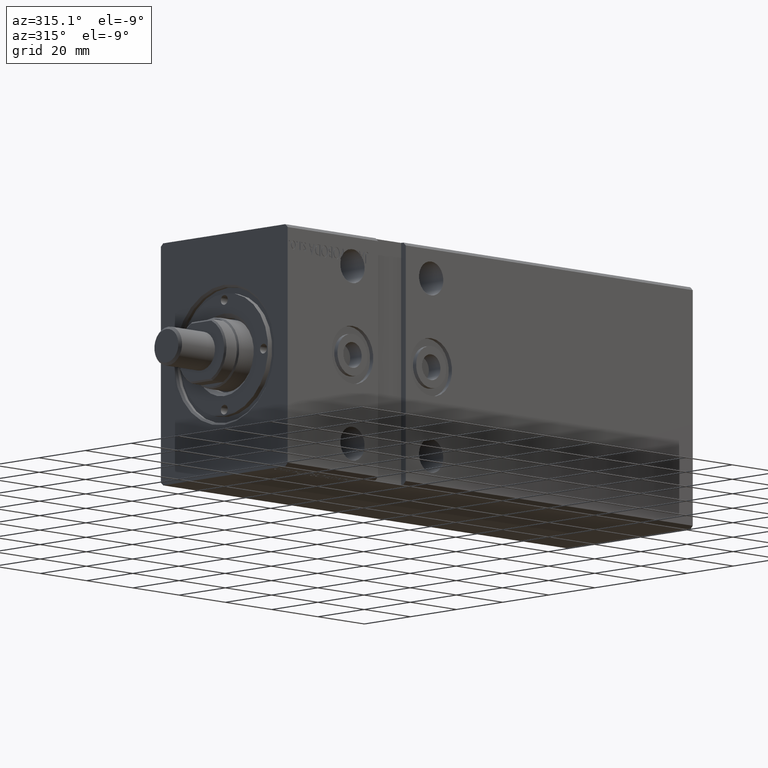
[diagram: clean part render]
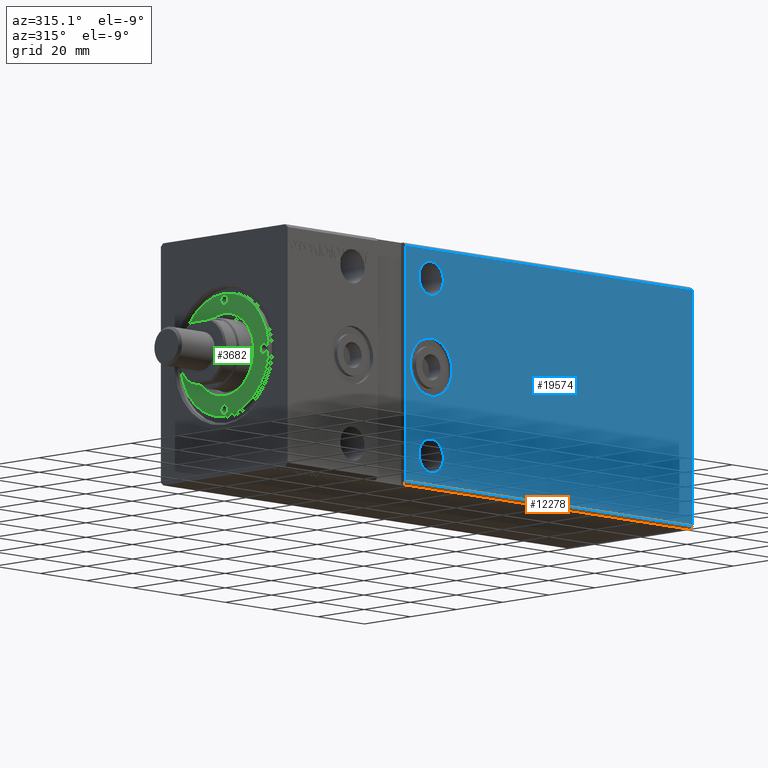
[diagram: same view with three faces highlighted in distinct colors, each labeled with its STEP entity id]
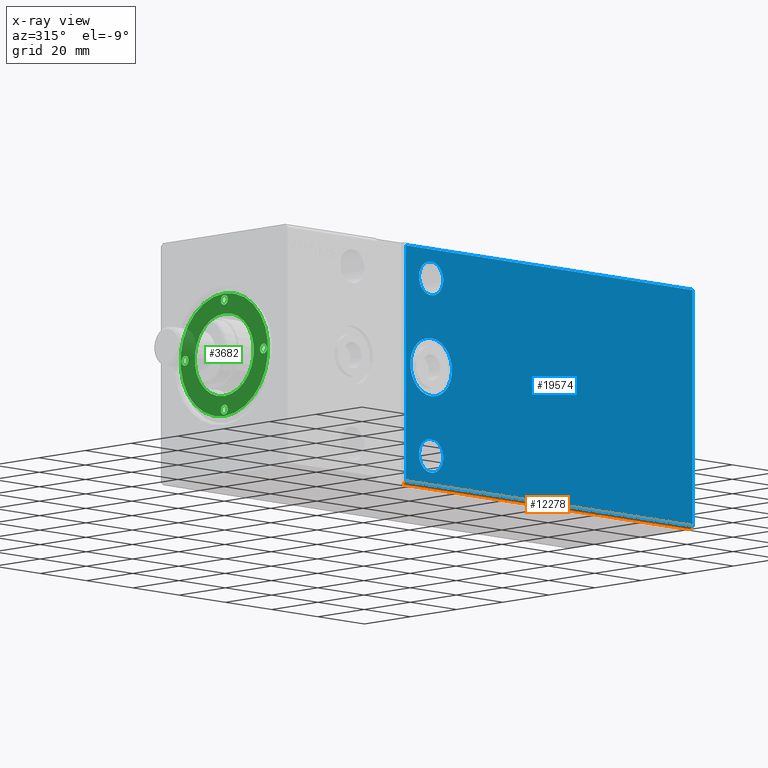
[diagram: x-ray of the same camera — body ghosted, the three highlighted faces saturated]
A machine part, auxiliary view with three faces highlighted in distinct colors.
The next image is the same camera in x-ray (body ghosted, the three faces saturated) — at least one of them is partly hidden behind the body in this view.
Their STEP definitions:

[orange] entity #12278 — the highlighted planar face has unit normal (0, 0.7071, 0.7071).
#193 = CARTESIAN_POINT ( 'NONE',  ( 175.0000000000000000, -27.50000000000000355, -36.49999999999998579 ) ) ;
#1748 = EDGE_CURVE ( 'NONE', #25143, #5171, #18840, .T. ) ;
#3412 = PLANE ( 'NONE',  #38011 ) ;
#4256 = ORIENTED_EDGE ( 'NONE', *, *, #41076, .F. ) ;
#4576 = DIRECTION ( 'NONE',  ( -1.000000000000000000, -0.000000000000000000, -0.000000000000000000 ) ) ;
#4600 = DIRECTION ( 'NONE',  ( -1.000000000000000000, -0.000000000000000000, -0.000000000000000000 ) ) ;
#4772 = CARTESIAN_POINT ( 'NONE',  ( 175.0000000000000000, -26.50000000000000355, -37.49999999999999289 ) ) ;
#5171 = VERTEX_POINT ( 'NONE', #25664 ) ;
#6458 = FACE_OUTER_BOUND ( 'NONE', #40925, .T. ) ;
#7221 = DIRECTION ( 'NONE',  ( 0.000000000000000000, 0.7071067811865451302, -0.7071067811865500152 ) ) ;
#7617 = LINE ( 'NONE', #27037, #27666 ) ;
#8691 = VECTOR ( 'NONE', #38675, 1000.000000000000114 ) ;
#10263 = CARTESIAN_POINT ( 'NONE',  ( 175.0000000000000000, -27.50000000000000355, -36.49999999999998579 ) ) ;
#12278 = ADVANCED_FACE ( 'NONE', ( #6458 ), #3412, .F. ) ;
#12998 = EDGE_CURVE ( 'NONE', #26466, #5171, #7617, .T. ) ;
#13920 = ORIENTED_EDGE ( 'NONE', *, *, #12998, .F. ) ;
#16366 = VECTOR ( 'NONE', #4576, 1000.000000000000000 ) ;
#18490 = CARTESIAN_POINT ( 'NONE',  ( 51.00000000000003553, -27.50000000000000000, -36.49999999999997868 ) ) ;
#18840 = LINE ( 'NONE', #25325, #8691 ) ;
#19459 = ORIENTED_EDGE ( 'NONE', *, *, #1748, .T. ) ;
#25143 = VERTEX_POINT ( 'NONE', #18490 ) ;
#25325 = CARTESIAN_POINT ( 'NONE',  ( 51.00000000000002842, -27.49999999999996803, -36.50000000000002132 ) ) ;
#25664 = CARTESIAN_POINT ( 'NONE',  ( 51.00000000000003553, -26.50000000000000355, -37.49999999999999289 ) ) ;
#26466 = VERTEX_POINT ( 'NONE', #4772 ) ;
#27037 = CARTESIAN_POINT ( 'NONE',  ( 175.0000000000000000, -26.50000000000000355, -37.49999999999999289 ) ) ;
#27666 = VECTOR ( 'NONE', #4600, 1000.000000000000000 ) ;
#29403 = CARTESIAN_POINT ( 'NONE',  ( 175.0000000000000000, -27.50000000000000355, -36.49999999999998579 ) ) ;
#29739 = DIRECTION ( 'NONE',  ( 0.000000000000000000, -0.7071067811865451302, 0.7071067811865499042 ) ) ;
#30090 = LINE ( 'NONE', #10263, #33132 ) ;
#32546 = VERTEX_POINT ( 'NONE', #29403 ) ;
#33132 = VECTOR ( 'NONE', #7221, 1000.000000000000114 ) ;
#33901 = LINE ( 'NONE', #34553, #16366 ) ;
#34553 = CARTESIAN_POINT ( 'NONE',  ( 175.0000000000000000, -27.50000000000000355, -36.49999999999998579 ) ) ;
#36844 = EDGE_CURVE ( 'NONE', #32546, #25143, #33901, .T. ) ;
#37619 = ORIENTED_EDGE ( 'NONE', *, *, #36844, .T. ) ;
#38011 = AXIS2_PLACEMENT_3D ( 'NONE', #193, #39220, #29739 ) ;
#38675 = DIRECTION ( 'NONE',  ( 3.925231146709450119E-16, 0.7071067811865451302, -0.7071067811865499042 ) ) ;
#39220 = DIRECTION ( 'NONE',  ( -0.000000000000000000, 0.7071067811865499042, 0.7071067811865451302 ) ) ;
#40925 = EDGE_LOOP ( 'NONE', ( #37619, #19459, #13920, #4256 ) ) ;
#41076 = EDGE_CURVE ( 'NONE', #32546, #26466, #30090, .T. ) ;

[blue] entity #19574 — the highlighted planar face has unit normal (0, 1, 0).
#115 = CARTESIAN_POINT ( 'NONE',  ( 62.00000000000000000, -27.50000000000000355, -4.082078227610671055E-15 ) ) ;
#201 = EDGE_CURVE ( 'NONE', #9656, #37541, #14155, .T. ) ;
#735 = CIRCLE ( 'NONE', #3475, 5.250000000000004441 ) ;
#1067 = ORIENTED_EDGE ( 'NONE', *, *, #22986, .F. ) ;
#2353 = AXIS2_PLACEMENT_3D ( 'NONE', #115, #30500, #6792 ) ;
#2615 = CARTESIAN_POINT ( 'NONE',  ( 175.0000000000000000, -27.50000000000000711, 36.50000000000000711 ) ) ;
#3475 = AXIS2_PLACEMENT_3D ( 'NONE', #37703, #18271, #14823 ) ;
#4576 = DIRECTION ( 'NONE',  ( -1.000000000000000000, -0.000000000000000000, -0.000000000000000000 ) ) ;
#4888 = LINE ( 'NONE', #11999, #23862 ) ;
#6792 = DIRECTION ( 'NONE',  ( 0.000000000000000000, 0.000000000000000000, 1.000000000000000000 ) ) ;
#6845 = LINE ( 'NONE', #26274, #39501 ) ;
#7656 = ORIENTED_EDGE ( 'NONE', *, *, #31650, .T. ) ;
#7995 = CARTESIAN_POINT ( 'NONE',  ( 51.00000000000000000, -27.50000000000000711, 36.50000000000000711 ) ) ;
#8055 = CARTESIAN_POINT ( 'NONE',  ( 62.00000000000000000, -27.50000000000000355, -9.000000000000000000 ) ) ;
#8160 = ORIENTED_EDGE ( 'NONE', *, *, #9704, .F. ) ;
#8245 = EDGE_CURVE ( 'NONE', #9402, #13244, #22473, .T. ) ;
#8786 = CARTESIAN_POINT ( 'NONE',  ( 62.00000000000000000, -27.50000000000000355, 22.24999999999999289 ) ) ;
#9172 = VERTEX_POINT ( 'NONE', #22689 ) ;
#9402 = VERTEX_POINT ( 'NONE', #28037 ) ;
#9656 = VERTEX_POINT ( 'NONE', #8786 ) ;
#9704 = EDGE_CURVE ( 'NONE', #37541, #9656, #735, .T. ) ;
#10691 = EDGE_CURVE ( 'NONE', #31321, #9172, #26221, .T. ) ;
#10698 = CARTESIAN_POINT ( 'NONE',  ( 62.00000000000000711, -27.50000000000000355, -32.75000000000000000 ) ) ;
#11999 = CARTESIAN_POINT ( 'NONE',  ( 175.0000000000000000, -27.50000000000000711, 36.50000000000000711 ) ) ;
#12744 = DIRECTION ( 'NONE',  ( -1.000000000000000000, -0.000000000000000000, -0.000000000000000000 ) ) ;
#13244 = VERTEX_POINT ( 'NONE', #7995 ) ;
#13762 = VERTEX_POINT ( 'NONE', #36389 ) ;
#14155 = CIRCLE ( 'NONE', #15551, 5.250000000000004441 ) ;
#14167 = DIRECTION ( 'NONE',  ( -0.000000000000000000, 1.000000000000000000, 4.752667057470704875E-17 ) ) ;
#14240 = AXIS2_PLACEMENT_3D ( 'NONE', #33092, #23194, #29445 ) ;
#14823 = DIRECTION ( 'NONE',  ( 0.000000000000000000, 0.000000000000000000, 1.000000000000000000 ) ) ;
#15489 = ORIENTED_EDGE ( 'NONE', *, *, #33290, .F. ) ;
#15551 = AXIS2_PLACEMENT_3D ( 'NONE', #28174, #31412, #41308 ) ;
#15747 = EDGE_LOOP ( 'NONE', ( #37354, #7656 ) ) ;
#16366 = VECTOR ( 'NONE', #4576, 1000.000000000000000 ) ;
#16531 = ORIENTED_EDGE ( 'NONE', *, *, #10691, .T. ) ;
#17229 = AXIS2_PLACEMENT_3D ( 'NONE', #37434, #20198, #39803 ) ;
#17396 = PLANE ( 'NONE',  #29812 ) ;
#17493 = VERTEX_POINT ( 'NONE', #8055 ) ;
#18271 = DIRECTION ( 'NONE',  ( 0.000000000000000000, -1.000000000000000000, -4.752667057470704875E-17 ) ) ;
#18490 = CARTESIAN_POINT ( 'NONE',  ( 51.00000000000003553, -27.50000000000000000, -36.49999999999997868 ) ) ;
#19513 = ORIENTED_EDGE ( 'NONE', *, *, #36844, .F. ) ;
#19574 = ADVANCED_FACE ( 'NONE', ( #24541, #20865, #37469, #20647 ), #17396, .F. ) ;
#20198 = DIRECTION ( 'NONE',  ( -0.000000000000000000, 1.000000000000000000, 4.752667057470704875E-17 ) ) ;
#20327 = EDGE_LOOP ( 'NONE', ( #39909, #1067, #19513, #15489 ) ) ;
#20647 = FACE_BOUND ( 'NONE', #34332, .T. ) ;
#20865 = FACE_BOUND ( 'NONE', #24906, .T. ) ;
#21893 = CARTESIAN_POINT ( 'NONE',  ( 62.00000000000000711, -27.50000000000000355, -27.50000000000000355 ) ) ;
#22473 = LINE ( 'NONE', #2615, #33710 ) ;
#22589 = CARTESIAN_POINT ( 'NONE',  ( 62.00000000000000000, -27.50000000000000355, 32.75000000000000000 ) ) ;
#22689 = CARTESIAN_POINT ( 'NONE',  ( 62.00000000000000711, -27.50000000000000355, -22.25000000000000711 ) ) ;
#22986 = EDGE_CURVE ( 'NONE', #25143, #13244, #6845, .T. ) ;
#23179 = CIRCLE ( 'NONE', #34172, 5.249999999999997335 ) ;
#23194 = DIRECTION ( 'NONE',  ( -0.000000000000000000, 1.000000000000000000, 5.507058653894625853E-17 ) ) ;
#23379 = EDGE_CURVE ( 'NONE', #17493, #13762, #29904, .T. ) ;
#23862 = VECTOR ( 'NONE', #39305, 1000.000000000000000 ) ;
#24541 = FACE_BOUND ( 'NONE', #15747, .T. ) ;
#24906 = EDGE_LOOP ( 'NONE', ( #16531, #25054 ) ) ;
#25054 = ORIENTED_EDGE ( 'NONE', *, *, #33855, .T. ) ;
#25143 = VERTEX_POINT ( 'NONE', #18490 ) ;
#26221 = CIRCLE ( 'NONE', #17229, 5.249999999999997335 ) ;
#26274 = CARTESIAN_POINT ( 'NONE',  ( 51.00000000000000000, -27.50000000000000711, 37.50000000000000711 ) ) ;
#27337 = DIRECTION ( 'NONE',  ( 0.000000000000000000, -4.752667057470704875E-17, 1.000000000000000000 ) ) ;
#27705 = DIRECTION ( 'NONE',  ( -0.000000000000000000, 1.000000000000000000, 4.752667057470704875E-17 ) ) ;
#28037 = CARTESIAN_POINT ( 'NONE',  ( 175.0000000000000000, -27.50000000000000711, 36.50000000000000711 ) ) ;
#28174 = CARTESIAN_POINT ( 'NONE',  ( 62.00000000000000000, -27.50000000000000355, 27.49999999999999645 ) ) ;
#29403 = CARTESIAN_POINT ( 'NONE',  ( 175.0000000000000000, -27.50000000000000355, -36.49999999999998579 ) ) ;
#29445 = DIRECTION ( 'NONE',  ( 0.000000000000000000, 0.000000000000000000, 1.000000000000000000 ) ) ;
#29812 = AXIS2_PLACEMENT_3D ( 'NONE', #30787, #14167, #27337 ) ;
#29904 = CIRCLE ( 'NONE', #2353, 8.999999999999996447 ) ;
#30500 = DIRECTION ( 'NONE',  ( -0.000000000000000000, 1.000000000000000000, 5.507058653894625853E-17 ) ) ;
#30787 = CARTESIAN_POINT ( 'NONE',  ( 175.0000000000000000, -27.50000000000000711, 36.50000000000000711 ) ) ;
#31321 = VERTEX_POINT ( 'NONE', #10698 ) ;
#31412 = DIRECTION ( 'NONE',  ( 0.000000000000000000, -1.000000000000000000, -4.752667057470704875E-17 ) ) ;
#31650 = EDGE_CURVE ( 'NONE', #13762, #17493, #38375, .T. ) ;
#32546 = VERTEX_POINT ( 'NONE', #29403 ) ;
#32741 = DIRECTION ( 'NONE',  ( -5.551115123125782702E-16, -9.251858538542971581E-17, 1.000000000000000000 ) ) ;
#33092 = CARTESIAN_POINT ( 'NONE',  ( 62.00000000000000000, -27.50000000000000355, -4.082078227610671055E-15 ) ) ;
#33290 = EDGE_CURVE ( 'NONE', #9402, #32546, #4888, .T. ) ;
#33710 = VECTOR ( 'NONE', #12744, 1000.000000000000000 ) ;
#33855 = EDGE_CURVE ( 'NONE', #9172, #31321, #23179, .T. ) ;
#33901 = LINE ( 'NONE', #34553, #16366 ) ;
#34172 = AXIS2_PLACEMENT_3D ( 'NONE', #21893, #27705, #41057 ) ;
#34332 = EDGE_LOOP ( 'NONE', ( #42636, #8160 ) ) ;
#34553 = CARTESIAN_POINT ( 'NONE',  ( 175.0000000000000000, -27.50000000000000355, -36.49999999999998579 ) ) ;
#36389 = CARTESIAN_POINT ( 'NONE',  ( 62.00000000000000000, -27.50000000000000355, 8.999999999999992895 ) ) ;
#36844 = EDGE_CURVE ( 'NONE', #32546, #25143, #33901, .T. ) ;
#37354 = ORIENTED_EDGE ( 'NONE', *, *, #23379, .T. ) ;
#37434 = CARTESIAN_POINT ( 'NONE',  ( 62.00000000000000711, -27.50000000000000355, -27.50000000000000355 ) ) ;
#37469 = FACE_OUTER_BOUND ( 'NONE', #20327, .T. ) ;
#37541 = VERTEX_POINT ( 'NONE', #22589 ) ;
#37703 = CARTESIAN_POINT ( 'NONE',  ( 62.00000000000000000, -27.50000000000000355, 27.49999999999999645 ) ) ;
#38375 = CIRCLE ( 'NONE', #14240, 8.999999999999996447 ) ;
#39305 = DIRECTION ( 'NONE',  ( 0.000000000000000000, 4.752667057470705491E-17, -1.000000000000000000 ) ) ;
#39501 = VECTOR ( 'NONE', #32741, 1000.000000000000000 ) ;
#39803 = DIRECTION ( 'NONE',  ( 0.000000000000000000, 0.000000000000000000, 1.000000000000000000 ) ) ;
#39909 = ORIENTED_EDGE ( 'NONE', *, *, #8245, .T. ) ;
#41057 = DIRECTION ( 'NONE',  ( 0.000000000000000000, 0.000000000000000000, 1.000000000000000000 ) ) ;
#41308 = DIRECTION ( 'NONE',  ( 0.000000000000000000, 0.000000000000000000, 1.000000000000000000 ) ) ;
#42636 = ORIENTED_EDGE ( 'NONE', *, *, #201, .F. ) ;

[green] entity #3682 — the highlighted planar face has unit normal (-1, 0, 0).
#478 = DIRECTION ( 'NONE',  ( 1.000000000000000000, 0.000000000000000000, 0.000000000000000000 ) ) ;
#492 = DIRECTION ( 'NONE',  ( -0.000000000000000000, -0.000000000000000000, 1.000000000000000000 ) ) ;
#592 = VERTEX_POINT ( 'NONE', #36919 ) ;
#1073 = CIRCLE ( 'NONE', #7947, 1.499999999999996891 ) ;
#1223 = VERTEX_POINT ( 'NONE', #20718 ) ;
#1301 = DIRECTION ( 'NONE',  ( 0.000000000000000000, 0.000000000000000000, 1.000000000000000000 ) ) ;
#1517 = CIRCLE ( 'NONE', #26973, 1.499999999999996891 ) ;
#1765 = VERTEX_POINT ( 'NONE', #32004 ) ;
#2127 = CIRCLE ( 'NONE', #38610, 12.79999999999997407 ) ;
#2246 = CARTESIAN_POINT ( 'NONE',  ( 0.000000000000000000, -17.00000000000000000, 9.999999999999998224 ) ) ;
#2714 = EDGE_CURVE ( 'NONE', #20202, #1223, #23120, .T. ) ;
#2842 = EDGE_LOOP ( 'NONE', ( #37346, #21373 ) ) ;
#3177 = ORIENTED_EDGE ( 'NONE', *, *, #24350, .F. ) ;
#3487 = CARTESIAN_POINT ( 'NONE',  ( -17.00000000000000000, 0.000000000000000000, 9.999999999999998224 ) ) ;
#3682 = ADVANCED_FACE ( 'NONE', ( #33211, #36444, #26535, #32797, #39249, #23303 ), #29972, .T. ) ;
#3775 = AXIS2_PLACEMENT_3D ( 'NONE', #21298, #18043, #31217 ) ;
#3870 = CARTESIAN_POINT ( 'NONE',  ( 0.000000000000000000, 0.000000000000000000, 9.999999999999998224 ) ) ;
#4809 = CIRCLE ( 'NONE', #10327, 19.00000000000000000 ) ;
#5087 = CIRCLE ( 'NONE', #16770, 1.499999999999997780 ) ;
#5106 = EDGE_LOOP ( 'NONE', ( #6606, #40346 ) ) ;
#5677 = CIRCLE ( 'NONE', #34615, 1.499999999999996891 ) ;
#5686 = ORIENTED_EDGE ( 'NONE', *, *, #2714, .F. ) ;
#6606 = ORIENTED_EDGE ( 'NONE', *, *, #40143, .F. ) ;
#6893 = CARTESIAN_POINT ( 'NONE',  ( 0.000000000000000000, 0.000000000000000000, 9.999999999999998224 ) ) ;
#7103 = VERTEX_POINT ( 'NONE', #37985 ) ;
#7722 = EDGE_CURVE ( 'NONE', #10226, #33400, #4809, .T. ) ;
#7879 = CARTESIAN_POINT ( 'NONE',  ( -15.50000000000000355, 0.000000000000000000, 9.999999999999998224 ) ) ;
#7947 = AXIS2_PLACEMENT_3D ( 'NONE', #27655, #492, #30886 ) ;
#8616 = CARTESIAN_POINT ( 'NONE',  ( -18.50000000000000000, 1.836970198721026236E-16, 9.999999999999998224 ) ) ;
#9697 = CIRCLE ( 'NONE', #10384, 19.00000000000000000 ) ;
#10226 = VERTEX_POINT ( 'NONE', #30256 ) ;
#10327 = AXIS2_PLACEMENT_3D ( 'NONE', #38468, #35666, #28768 ) ;
#10384 = AXIS2_PLACEMENT_3D ( 'NONE', #23965, #1301, #41773 ) ;
#10471 = EDGE_CURVE ( 'NONE', #33400, #10226, #9697, .T. ) ;
#10484 = ORIENTED_EDGE ( 'NONE', *, *, #39980, .T. ) ;
#11936 = DIRECTION ( 'NONE',  ( 1.000000000000000000, 0.000000000000000000, 0.000000000000000000 ) ) ;
#12641 = DIRECTION ( 'NONE',  ( -0.000000000000000000, -0.000000000000000000, -1.000000000000000000 ) ) ;
#12924 = ORIENTED_EDGE ( 'NONE', *, *, #27310, .F. ) ;
#13375 = DIRECTION ( 'NONE',  ( 0.000000000000000000, 0.000000000000000000, 1.000000000000000000 ) ) ;
#13455 = AXIS2_PLACEMENT_3D ( 'NONE', #6893, #13375, #36658 ) ;
#13988 = CARTESIAN_POINT ( 'NONE',  ( 17.00000000000000000, 0.000000000000000000, 9.999999999999998224 ) ) ;
#14212 = DIRECTION ( 'NONE',  ( 1.000000000000000000, 0.000000000000000000, 0.000000000000000000 ) ) ;
#14323 = CARTESIAN_POINT ( 'NONE',  ( -17.00000000000000000, 0.000000000000000000, 9.999999999999998224 ) ) ;
#14425 = DIRECTION ( 'NONE',  ( -0.000000000000000000, -0.000000000000000000, -1.000000000000000000 ) ) ;
#16770 = AXIS2_PLACEMENT_3D ( 'NONE', #3487, #40129, #478 ) ;
#17340 = DIRECTION ( 'NONE',  ( -0.000000000000000000, -0.000000000000000000, 1.000000000000000000 ) ) ;
#17469 = CIRCLE ( 'NONE', #22348, 1.499999999999996891 ) ;
#17555 = EDGE_CURVE ( 'NONE', #1765, #592, #1517, .T. ) ;
#17773 = DIRECTION ( 'NONE',  ( -0.000000000000000000, -0.000000000000000000, 1.000000000000000000 ) ) ;
#18043 = DIRECTION ( 'NONE',  ( -0.000000000000000000, -0.000000000000000000, 1.000000000000000000 ) ) ;
#18684 = EDGE_CURVE ( 'NONE', #32097, #31940, #5677, .T. ) ;
#19113 = DIRECTION ( 'NONE',  ( 1.000000000000000000, 0.000000000000000000, 0.000000000000000000 ) ) ;
#19343 = CIRCLE ( 'NONE', #24143, 1.499999999999997780 ) ;
#20202 = VERTEX_POINT ( 'NONE', #36104 ) ;
#20718 = CARTESIAN_POINT ( 'NONE',  ( 18.50000000000000000, 0.000000000000000000, 9.999999999999998224 ) ) ;
#20807 = DIRECTION ( 'NONE',  ( 1.000000000000000000, 0.000000000000000000, 0.000000000000000000 ) ) ;
#21120 = EDGE_LOOP ( 'NONE', ( #3177, #33675 ) ) ;
#21298 = CARTESIAN_POINT ( 'NONE',  ( 17.00000000000000000, 0.000000000000000000, 9.999999999999998224 ) ) ;
#21373 = ORIENTED_EDGE ( 'NONE', *, *, #7722, .T. ) ;
#21960 = CARTESIAN_POINT ( 'NONE',  ( 12.79999999999997407, 0.000000000000000000, 9.999999999999998224 ) ) ;
#22307 = EDGE_LOOP ( 'NONE', ( #39242, #5686 ) ) ;
#22348 = AXIS2_PLACEMENT_3D ( 'NONE', #2246, #17773, #35031 ) ;
#22508 = EDGE_CURVE ( 'NONE', #24741, #38608, #5087, .T. ) ;
#23120 = CIRCLE ( 'NONE', #3775, 1.499999999999997780 ) ;
#23303 = FACE_OUTER_BOUND ( 'NONE', #2842, .T. ) ;
#23965 = CARTESIAN_POINT ( 'NONE',  ( 0.000000000000000000, 0.000000000000000000, 9.999999999999998224 ) ) ;
#24143 = AXIS2_PLACEMENT_3D ( 'NONE', #14323, #17340, #20807 ) ;
#24350 = EDGE_CURVE ( 'NONE', #592, #1765, #17469, .T. ) ;
#24741 = VERTEX_POINT ( 'NONE', #8616 ) ;
#25842 = CIRCLE ( 'NONE', #31354, 1.499999999999997780 ) ;
#26104 = CARTESIAN_POINT ( 'NONE',  ( 1.499999999999996891, 17.00000000000000000, 9.999999999999998224 ) ) ;
#26535 = FACE_BOUND ( 'NONE', #22307, .T. ) ;
#26684 = EDGE_CURVE ( 'NONE', #1223, #20202, #25842, .T. ) ;
#26973 = AXIS2_PLACEMENT_3D ( 'NONE', #28325, #41466, #11936 ) ;
#27159 = DIRECTION ( 'NONE',  ( -0.000000000000000000, -0.000000000000000000, 1.000000000000000000 ) ) ;
#27310 = EDGE_CURVE ( 'NONE', #31940, #32097, #1073, .T. ) ;
#27655 = CARTESIAN_POINT ( 'NONE',  ( 0.000000000000000000, 17.00000000000000000, 9.999999999999998224 ) ) ;
#27854 = CARTESIAN_POINT ( 'NONE',  ( -1.499999999999996891, 17.00000000000000000, 9.999999999999998224 ) ) ;
#28325 = CARTESIAN_POINT ( 'NONE',  ( 0.000000000000000000, -17.00000000000000000, 9.999999999999998224 ) ) ;
#28768 = DIRECTION ( 'NONE',  ( 1.000000000000000000, 0.000000000000000000, 0.000000000000000000 ) ) ;
#29032 = DIRECTION ( 'NONE',  ( -0.000000000000000000, -0.000000000000000000, 1.000000000000000000 ) ) ;
#29972 = PLANE ( 'NONE',  #13455 ) ;
#30256 = CARTESIAN_POINT ( 'NONE',  ( 19.00000000000000000, 2.326828918379970970E-15, 9.999999999999998224 ) ) ;
#30886 = DIRECTION ( 'NONE',  ( 1.000000000000000000, 0.000000000000000000, 0.000000000000000000 ) ) ;
#31217 = DIRECTION ( 'NONE',  ( 1.000000000000000000, 0.000000000000000000, 0.000000000000000000 ) ) ;
#31354 = AXIS2_PLACEMENT_3D ( 'NONE', #13988, #27159, #40293 ) ;
#31940 = VERTEX_POINT ( 'NONE', #27854 ) ;
#32004 = CARTESIAN_POINT ( 'NONE',  ( -1.499999999999996891, -17.00000000000000000, 9.999999999999998224 ) ) ;
#32097 = VERTEX_POINT ( 'NONE', #26104 ) ;
#32797 = FACE_BOUND ( 'NONE', #21120, .T. ) ;
#32941 = ORIENTED_EDGE ( 'NONE', *, *, #18684, .F. ) ;
#33096 = AXIS2_PLACEMENT_3D ( 'NONE', #38735, #12641, #42168 ) ;
#33211 = FACE_BOUND ( 'NONE', #5106, .T. ) ;
#33400 = VERTEX_POINT ( 'NONE', #40144 ) ;
#33675 = ORIENTED_EDGE ( 'NONE', *, *, #17555, .F. ) ;
#34615 = AXIS2_PLACEMENT_3D ( 'NONE', #42166, #29032, #19113 ) ;
#34631 = EDGE_LOOP ( 'NONE', ( #10484, #41623 ) ) ;
#35031 = DIRECTION ( 'NONE',  ( 1.000000000000000000, 0.000000000000000000, 0.000000000000000000 ) ) ;
#35666 = DIRECTION ( 'NONE',  ( 0.000000000000000000, 0.000000000000000000, 1.000000000000000000 ) ) ;
#36104 = CARTESIAN_POINT ( 'NONE',  ( 15.50000000000000355, 1.836970198721027222E-16, 9.999999999999998224 ) ) ;
#36444 = FACE_BOUND ( 'NONE', #40905, .T. ) ;
#36658 = DIRECTION ( 'NONE',  ( 1.000000000000000000, 0.000000000000000000, -0.000000000000000000 ) ) ;
#36919 = CARTESIAN_POINT ( 'NONE',  ( 1.499999999999996891, -17.00000000000000000, 9.999999999999998224 ) ) ;
#37346 = ORIENTED_EDGE ( 'NONE', *, *, #10471, .T. ) ;
#37985 = CARTESIAN_POINT ( 'NONE',  ( -12.79999999999997407, 1.567547902908609029E-15, 9.999999999999998224 ) ) ;
#38444 = VERTEX_POINT ( 'NONE', #21960 ) ;
#38468 = CARTESIAN_POINT ( 'NONE',  ( 0.000000000000000000, 0.000000000000000000, 9.999999999999998224 ) ) ;
#38608 = VERTEX_POINT ( 'NONE', #7879 ) ;
#38610 = AXIS2_PLACEMENT_3D ( 'NONE', #3870, #14425, #14212 ) ;
#38735 = CARTESIAN_POINT ( 'NONE',  ( 0.000000000000000000, 0.000000000000000000, 9.999999999999998224 ) ) ;
#39242 = ORIENTED_EDGE ( 'NONE', *, *, #26684, .F. ) ;
#39249 = FACE_BOUND ( 'NONE', #34631, .T. ) ;
#39309 = CIRCLE ( 'NONE', #33096, 12.79999999999997407 ) ;
#39562 = EDGE_CURVE ( 'NONE', #7103, #38444, #2127, .T. ) ;
#39980 = EDGE_CURVE ( 'NONE', #38444, #7103, #39309, .T. ) ;
#40129 = DIRECTION ( 'NONE',  ( -0.000000000000000000, -0.000000000000000000, 1.000000000000000000 ) ) ;
#40143 = EDGE_CURVE ( 'NONE', #38608, #24741, #19343, .T. ) ;
#40144 = CARTESIAN_POINT ( 'NONE',  ( -19.00000000000000000, 0.000000000000000000, 9.999999999999998224 ) ) ;
#40293 = DIRECTION ( 'NONE',  ( 1.000000000000000000, 0.000000000000000000, 0.000000000000000000 ) ) ;
#40346 = ORIENTED_EDGE ( 'NONE', *, *, #22508, .F. ) ;
#40905 = EDGE_LOOP ( 'NONE', ( #32941, #12924 ) ) ;
#41466 = DIRECTION ( 'NONE',  ( -0.000000000000000000, -0.000000000000000000, 1.000000000000000000 ) ) ;
#41623 = ORIENTED_EDGE ( 'NONE', *, *, #39562, .T. ) ;
#41773 = DIRECTION ( 'NONE',  ( 1.000000000000000000, 0.000000000000000000, 0.000000000000000000 ) ) ;
#42166 = CARTESIAN_POINT ( 'NONE',  ( 0.000000000000000000, 17.00000000000000000, 9.999999999999998224 ) ) ;
#42168 = DIRECTION ( 'NONE',  ( 1.000000000000000000, 0.000000000000000000, 0.000000000000000000 ) ) ;